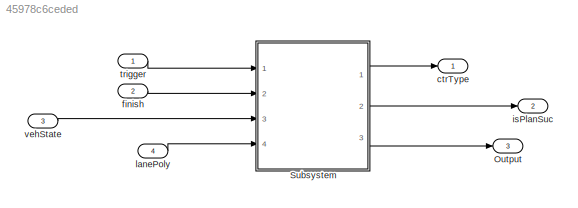
MODEL slx_45978c6ceded
KIND model
CONFIG AbsTol = auto
CONFIG EnableMultiTasking = off
CONFIG FixedStep = 0.001
CONFIG MaxStep = auto
CONFIG MinStep = auto
CONFIG RelTol = 1e-3
CONFIG SampleTimeConstraint = Unconstrained
CONFIG Solver = FixedStepAuto
CONFIG SolverName = FixedStepAuto
CONFIG StartTime = 0.0
CONFIG StopTime = inf
BLOCK [Outport] Output
  IconDisplay = Port number
  OutDataTypeStr = Bus: PlanningOutput
  Port = 3
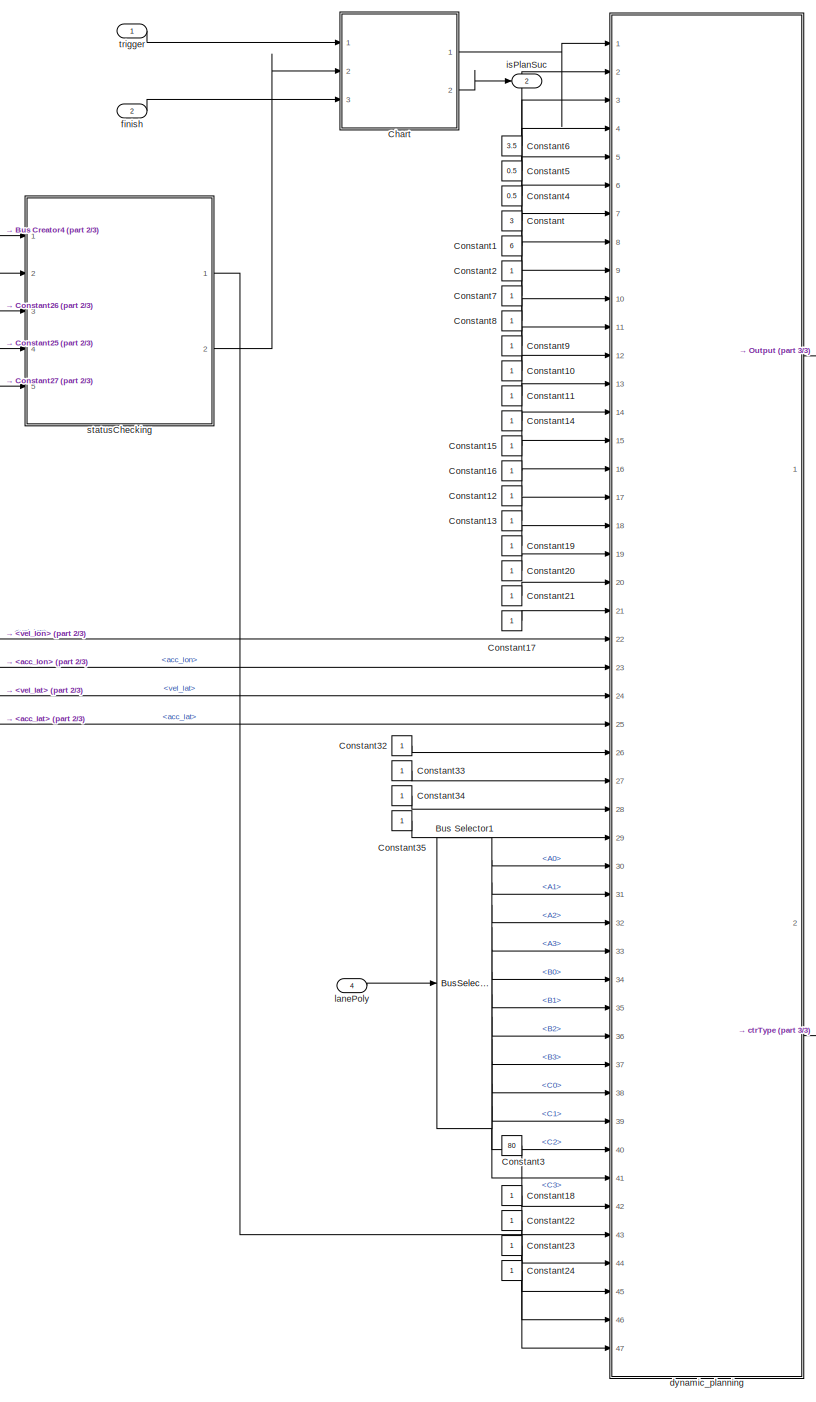
[diagram: Subsystem - part 1/3, center side, full height]
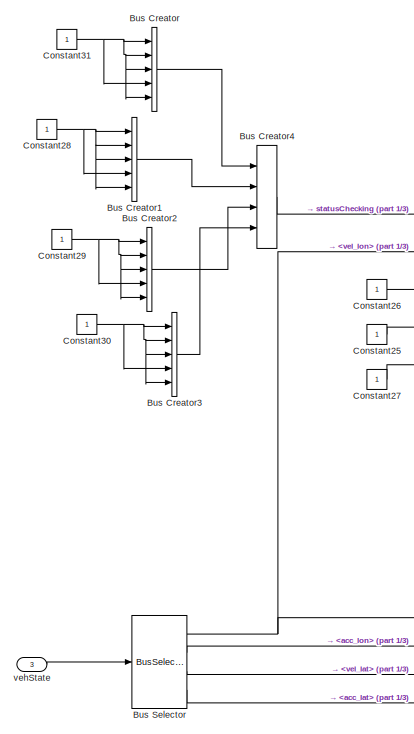
[diagram: Subsystem - part 2/3, top left region]
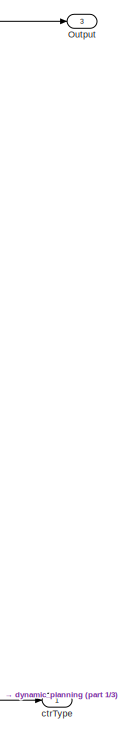
[diagram: Subsystem - part 3/3, middle right region]
BLOCK [SubSystem] Subsystem
  Ports = [4, 3]
  RequestExecContextInheritance = off
BLOCK [BusCreator] Subsystem/Bus Creator
  DisplayOption = bar
  InheritFromInputs = on
  Inputs = 5
  OutDataTypeStr = Bus: ObjInfo
  Ports = [5, 1]
BLOCK [BusCreator] Subsystem/Bus Creator1
  DisplayOption = bar
  InheritFromInputs = on
  Inputs = 5
  OutDataTypeStr = Bus: ObjInfo
  Ports = [5, 1]
BLOCK [BusCreator] Subsystem/Bus Creator2
  DisplayOption = bar
  InheritFromInputs = on
  Inputs = 5
  OutDataTypeStr = Bus: ObjInfo
  Ports = [5, 1]
BLOCK [BusCreator] Subsystem/Bus Creator3
  DisplayOption = bar
  InheritFromInputs = on
  Inputs = 5
  OutDataTypeStr = Bus: ObjInfo
  Ports = [5, 1]
BLOCK [BusCreator] Subsystem/Bus Creator4
  DisplayOption = bar
  InheritFromInputs = on
  Inputs = 4
  OutDataTypeStr = Bus: SelectedObject
  Ports = [4, 1]
BLOCK [BusSelector] Subsystem/Bus Selector
  OutputAsBus = off
  OutputSignals = vel_lon,acc_lon,vel_lat,acc_lat
  Ports = [1, 4]
BLOCK [BusSelector] Subsystem/Bus Selector1
  OutputAsBus = off
  OutputSignals = A0,A1,A2,A3,B0,B1,B2,B3,C0,C1,C2,C3
  Ports = [1, 12]
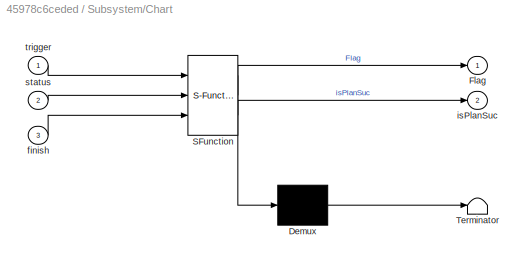
BLOCK [SubSystem] Subsystem/Chart
  ErrorFcn = Stateflow.Translate.translate
  PermitHierarchicalResolution = ExplicitOnly
  Ports = [3, 2]
  RequestExecContextInheritance = off
  SFBlockType = Chart
  TreatAsAtomicUnit = on
BLOCK [Demux] Subsystem/Chart/ Demux 
  Outputs = 1
  Ports = [1, 1]
BLOCK [S-Function] Subsystem/Chart/ SFunction 
  EnableBusSupport = on
  FunctionName = sf_sfun
  PortCounts = [3 3]
  Ports = [3, 3]
  SFcnIsStateOwnerBlock = off
  SFunctionDeploymentMode = off
  Tag = Stateflow S-Function module_dynamic_merge_2018b 3
BLOCK [Terminator] Subsystem/Chart/ Terminator 
BLOCK [Outport] Subsystem/Chart/Flag
  IconDisplay = Port number
BLOCK [Inport] Subsystem/Chart/finish
  IconDisplay = Port number
  Port = 3
BLOCK [Outport] Subsystem/Chart/isPlanSuc
  IconDisplay = Port number
  Port = 2
BLOCK [Inport] Subsystem/Chart/status
  IconDisplay = Port number
  Port = 2
BLOCK [Inport] Subsystem/Chart/trigger
  IconDisplay = Port number
BLOCK [Constant] Subsystem/Constant
  Value = 3
BLOCK [Constant] Subsystem/Constant1
  Value = 6
BLOCK [Constant] Subsystem/Constant10
BLOCK [Constant] Subsystem/Constant11
BLOCK [Constant] Subsystem/Constant12
BLOCK [Constant] Subsystem/Constant13
BLOCK [Constant] Subsystem/Constant14
BLOCK [Constant] Subsystem/Constant15
BLOCK [Constant] Subsystem/Constant16
BLOCK [Constant] Subsystem/Constant17
BLOCK [Constant] Subsystem/Constant18
BLOCK [Constant] Subsystem/Constant19
BLOCK [Constant] Subsystem/Constant2
BLOCK [Constant] Subsystem/Constant20
BLOCK [Constant] Subsystem/Constant21
BLOCK [Constant] Subsystem/Constant22
BLOCK [Constant] Subsystem/Constant23
BLOCK [Constant] Subsystem/Constant24
BLOCK [Constant] Subsystem/Constant25
BLOCK [Constant] Subsystem/Constant26
BLOCK [Constant] Subsystem/Constant27
BLOCK [Constant] Subsystem/Constant28
BLOCK [Constant] Subsystem/Constant29
BLOCK [Constant] Subsystem/Constant3
  OutDataTypeStr = double
  Value = 80
BLOCK [Constant] Subsystem/Constant30
BLOCK [Constant] Subsystem/Constant31
BLOCK [Constant] Subsystem/Constant32
BLOCK [Constant] Subsystem/Constant33
BLOCK [Constant] Subsystem/Constant34
BLOCK [Constant] Subsystem/Constant35
BLOCK [Constant] Subsystem/Constant4
  Value = 0.5
BLOCK [Constant] Subsystem/Constant5
  Value = 0.5
BLOCK [Constant] Subsystem/Constant6
  Value = 3.5
BLOCK [Constant] Subsystem/Constant7
BLOCK [Constant] Subsystem/Constant8
BLOCK [Constant] Subsystem/Constant9
BLOCK [Outport] Subsystem/Output
  IconDisplay = Port number
  OutDataTypeStr = Bus: PlanningOutput
  Port = 3
BLOCK [Outport] Subsystem/ctrType
  IconDisplay = Port number
  OutDataTypeStr = double
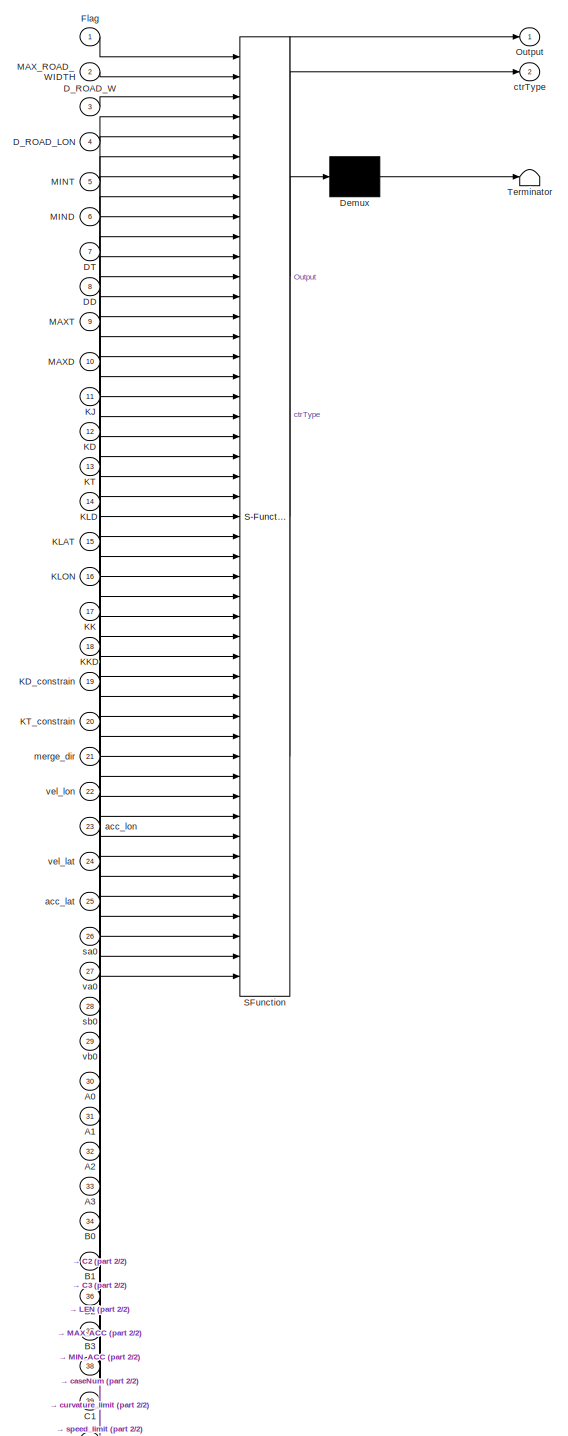
[diagram: Subsystem/dynamic_planning - part 1/2, most of the canvas]
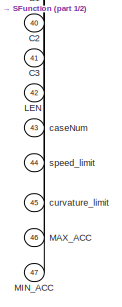
[diagram: Subsystem/dynamic_planning - part 2/2, bottom left region]
BLOCK [SubSystem] Subsystem/dynamic_planning
  ErrorFcn = Stateflow.Translate.translate
  PermitHierarchicalResolution = ExplicitOnly
  Ports = [47, 2]
  RequestExecContextInheritance = off
  SFBlockType = MATLAB Function
  TreatAsAtomicUnit = on
BLOCK [Demux] Subsystem/dynamic_planning/ Demux 
  Outputs = 1
  Ports = [1, 1]
BLOCK [S-Function] Subsystem/dynamic_planning/ SFunction 
  EnableBusSupport = on
  FunctionName = sf_sfun
  PortCounts = [47 3]
  Ports = [47, 3]
  SFcnIsStateOwnerBlock = off
  SFunctionDeploymentMode = off
  Tag = Stateflow S-Function module_dynamic_merge_2018b 1
BLOCK [Terminator] Subsystem/dynamic_planning/ Terminator 
BLOCK [Inport] Subsystem/dynamic_planning/A0
  IconDisplay = Port number
  Port = 30
BLOCK [Inport] Subsystem/dynamic_planning/A1
  IconDisplay = Port number
  Port = 31
BLOCK [Inport] Subsystem/dynamic_planning/A2
  IconDisplay = Port number
  Port = 32
BLOCK [Inport] Subsystem/dynamic_planning/A3
  IconDisplay = Port number
  Port = 33
BLOCK [Inport] Subsystem/dynamic_planning/B0
  IconDisplay = Port number
  Port = 34
BLOCK [Inport] Subsystem/dynamic_planning/B1
  IconDisplay = Port number
  Port = 35
BLOCK [Inport] Subsystem/dynamic_planning/B2
  IconDisplay = Port number
  Port = 36
BLOCK [Inport] Subsystem/dynamic_planning/B3
  IconDisplay = Port number
  Port = 37
BLOCK [Inport] Subsystem/dynamic_planning/C0
  IconDisplay = Port number
  Port = 38
BLOCK [Inport] Subsystem/dynamic_planning/C1
  IconDisplay = Port number
  Port = 39
BLOCK [Inport] Subsystem/dynamic_planning/C2
  IconDisplay = Port number
  Port = 40
BLOCK [Inport] Subsystem/dynamic_planning/C3
  IconDisplay = Port number
  Port = 41
BLOCK [Inport] Subsystem/dynamic_planning/DD
  IconDisplay = Port number
  Port = 8
BLOCK [Inport] Subsystem/dynamic_planning/DT
  IconDisplay = Port number
  Port = 7
BLOCK [Inport] Subsystem/dynamic_planning/D_ROAD_LON
  IconDisplay = Port number
  Port = 4
BLOCK [Inport] Subsystem/dynamic_planning/D_ROAD_W
  IconDisplay = Port number
  Port = 3
BLOCK [Inport] Subsystem/dynamic_planning/Flag
  IconDisplay = Port number
BLOCK [Inport] Subsystem/dynamic_planning/KD
  IconDisplay = Port number
  Port = 12
BLOCK [Inport] Subsystem/dynamic_planning/KD_constrain
  IconDisplay = Port number
  Port = 19
BLOCK [Inport] Subsystem/dynamic_planning/KJ
  IconDisplay = Port number
  Port = 11
BLOCK [Inport] Subsystem/dynamic_planning/KK
  IconDisplay = Port number
  Port = 17
BLOCK [Inport] Subsystem/dynamic_planning/KKD
  IconDisplay = Port number
  Port = 18
BLOCK [Inport] Subsystem/dynamic_planning/KLAT
  IconDisplay = Port number
  Port = 15
BLOCK [Inport] Subsystem/dynamic_planning/KLD
  IconDisplay = Port number
  Port = 14
BLOCK [Inport] Subsystem/dynamic_planning/KLON
  IconDisplay = Port number
  Port = 16
BLOCK [Inport] Subsystem/dynamic_planning/KT
  IconDisplay = Port number
  Port = 13
BLOCK [Inport] Subsystem/dynamic_planning/KT_constrain
  IconDisplay = Port number
  Port = 20
BLOCK [Inport] Subsystem/dynamic_planning/LEN
  IconDisplay = Port number
  Port = 42
BLOCK [Inport] Subsystem/dynamic_planning/MAXD
  IconDisplay = Port number
  Port = 10
BLOCK [Inport] Subsystem/dynamic_planning/MAXT
  IconDisplay = Port number
  Port = 9
BLOCK [Inport] Subsystem/dynamic_planning/MAX_ACC
  IconDisplay = Port number
  Port = 46
BLOCK [Inport] Subsystem/dynamic_planning/MAX_ROAD_WIDTH
  IconDisplay = Port number
  Port = 2
BLOCK [Inport] Subsystem/dynamic_planning/MIND
  IconDisplay = Port number
  Port = 6
BLOCK [Inport] Subsystem/dynamic_planning/MINT
  IconDisplay = Port number
  Port = 5
BLOCK [Inport] Subsystem/dynamic_planning/MIN_ACC
  IconDisplay = Port number
  Port = 47
BLOCK [Outport] Subsystem/dynamic_planning/Output
  IconDisplay = Port number
BLOCK [Inport] Subsystem/dynamic_planning/acc_lat
  IconDisplay = Port number
  Port = 25
BLOCK [Inport] Subsystem/dynamic_planning/acc_lon
  IconDisplay = Port number
  Port = 23
BLOCK [Inport] Subsystem/dynamic_planning/caseNum
  IconDisplay = Port number
  Port = 43
BLOCK [Outport] Subsystem/dynamic_planning/ctrType
  IconDisplay = Port number
  Port = 2
BLOCK [Inport] Subsystem/dynamic_planning/curvature_limit
  IconDisplay = Port number
  Port = 45
BLOCK [Inport] Subsystem/dynamic_planning/merge_dir
  IconDisplay = Port number
  Port = 21
BLOCK [Inport] Subsystem/dynamic_planning/sa0
  IconDisplay = Port number
  Port = 26
BLOCK [Inport] Subsystem/dynamic_planning/sb0
  IconDisplay = Port number
  Port = 28
BLOCK [Inport] Subsystem/dynamic_planning/speed_limit
  IconDisplay = Port number
  Port = 44
BLOCK [Inport] Subsystem/dynamic_planning/va0
  IconDisplay = Port number
  Port = 27
BLOCK [Inport] Subsystem/dynamic_planning/vb0
  IconDisplay = Port number
  Port = 29
BLOCK [Inport] Subsystem/dynamic_planning/vel_lat
  IconDisplay = Port number
  Port = 24
BLOCK [Inport] Subsystem/dynamic_planning/vel_lon
  IconDisplay = Port number
  Port = 22
BLOCK [Inport] Subsystem/finish
  IconDisplay = Port number
  Port = 2
BLOCK [Outport] Subsystem/isPlanSuc
  IconDisplay = Port number
  OutDataTypeStr = int8
  Port = 2
BLOCK [Inport] Subsystem/lanePoly 
  IconDisplay = Port number
  OutDataTypeStr = Bus: lanePoly
  Port = 4
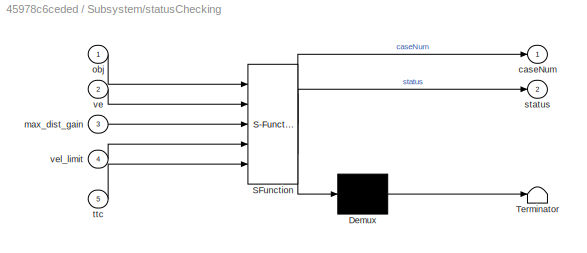
BLOCK [SubSystem] Subsystem/statusChecking
  ErrorFcn = Stateflow.Translate.translate
  PermitHierarchicalResolution = ExplicitOnly
  Ports = [5, 2]
  RequestExecContextInheritance = off
  SFBlockType = MATLAB Function
  TreatAsAtomicUnit = on
BLOCK [Demux] Subsystem/statusChecking/ Demux 
  Outputs = 1
  Ports = [1, 1]
BLOCK [S-Function] Subsystem/statusChecking/ SFunction 
  EnableBusSupport = on
  FunctionName = sf_sfun
  PortCounts = [5 3]
  Ports = [5, 3]
  SFcnIsStateOwnerBlock = off
  SFunctionDeploymentMode = off
  Tag = Stateflow S-Function module_dynamic_merge_2018b 2
BLOCK [Terminator] Subsystem/statusChecking/ Terminator 
BLOCK [Outport] Subsystem/statusChecking/caseNum
  IconDisplay = Port number
BLOCK [Inport] Subsystem/statusChecking/max_dist_gain
  IconDisplay = Port number
  Port = 3
BLOCK [Inport] Subsystem/statusChecking/obj
  IconDisplay = Port number
BLOCK [Outport] Subsystem/statusChecking/status
  IconDisplay = Port number
  Port = 2
BLOCK [Inport] Subsystem/statusChecking/ttc
  IconDisplay = Port number
  Port = 5
BLOCK [Inport] Subsystem/statusChecking/ve
  IconDisplay = Port number
  Port = 2
BLOCK [Inport] Subsystem/statusChecking/vel_limit
  IconDisplay = Port number
  Port = 4
BLOCK [Inport] Subsystem/trigger
  IconDisplay = Port number
BLOCK [Inport] Subsystem/vehState
  IconDisplay = Port number
  OutDataTypeStr = Bus: vehStates
  Port = 3
BLOCK [Outport] ctrType
  IconDisplay = Port number
  OutDataTypeStr = double
BLOCK [Inport] finish
  IconDisplay = Port number
  Port = 2
BLOCK [Outport] isPlanSuc
  IconDisplay = Port number
  OutDataTypeStr = int8
  Port = 2
BLOCK [Inport] lanePoly 
  IconDisplay = Port number
  OutDataTypeStr = Bus: lanePoly
  Port = 4
BLOCK [Inport] trigger
  IconDisplay = Port number
BLOCK [Inport] vehState
  IconDisplay = Port number
  OutDataTypeStr = Bus: vehStates
  Port = 3
LINE Subsystem/Bus Creator1:1 -> Subsystem/Bus Creator4:2
LINE Subsystem/Bus Creator2:1 -> Subsystem/Bus Creator4:3
LINE Subsystem/Bus Creator3:1 -> Subsystem/Bus Creator4:4
LINE Subsystem/Bus Creator4:1 -> Subsystem/statusChecking:1
LINE Subsystem/Bus Creator:1 -> Subsystem/Bus Creator4:1
LINE Subsystem/Bus Selector1:1 -> Subsystem/dynamic_planning:30
LINE Subsystem/Bus Selector1:10 -> Subsystem/dynamic_planning:39
LINE Subsystem/Bus Selector1:11 -> Subsystem/dynamic_planning:40
LINE Subsystem/Bus Selector1:12 -> Subsystem/dynamic_planning:41
LINE Subsystem/Bus Selector1:2 -> Subsystem/dynamic_planning:31
LINE Subsystem/Bus Selector1:3 -> Subsystem/dynamic_planning:32
LINE Subsystem/Bus Selector1:4 -> Subsystem/dynamic_planning:33
LINE Subsystem/Bus Selector1:5 -> Subsystem/dynamic_planning:34
LINE Subsystem/Bus Selector1:6 -> Subsystem/dynamic_planning:35
LINE Subsystem/Bus Selector1:7 -> Subsystem/dynamic_planning:36
LINE Subsystem/Bus Selector1:8 -> Subsystem/dynamic_planning:37
LINE Subsystem/Bus Selector1:9 -> Subsystem/dynamic_planning:38
NET Subsystem/Bus Selector:1 -> Subsystem/dynamic_planning:22, Subsystem/statusChecking:2
LINE Subsystem/Bus Selector:2 -> Subsystem/dynamic_planning:23
LINE Subsystem/Bus Selector:3 -> Subsystem/dynamic_planning:24
LINE Subsystem/Bus Selector:4 -> Subsystem/dynamic_planning:25
LINE Subsystem/Chart:1 -> Subsystem/dynamic_planning:1
LINE Subsystem/Chart:2 -> Subsystem/isPlanSuc:1
LINE Subsystem/Constant10:1 -> Subsystem/dynamic_planning:11
LINE Subsystem/Constant11:1 -> Subsystem/dynamic_planning:12
LINE Subsystem/Constant12:1 -> Subsystem/dynamic_planning:16
LINE Subsystem/Constant13:1 -> Subsystem/dynamic_planning:17
LINE Subsystem/Constant14:1 -> Subsystem/dynamic_planning:13
LINE Subsystem/Constant15:1 -> Subsystem/dynamic_planning:14
LINE Subsystem/Constant16:1 -> Subsystem/dynamic_planning:15
LINE Subsystem/Constant17:1 -> Subsystem/dynamic_planning:21
LINE Subsystem/Constant18:1 -> Subsystem/dynamic_planning:44
LINE Subsystem/Constant19:1 -> Subsystem/dynamic_planning:18
LINE Subsystem/Constant1:1 -> Subsystem/dynamic_planning:6
LINE Subsystem/Constant20:1 -> Subsystem/dynamic_planning:19
LINE Subsystem/Constant21:1 -> Subsystem/dynamic_planning:20
LINE Subsystem/Constant22:1 -> Subsystem/dynamic_planning:45
LINE Subsystem/Constant23:1 -> Subsystem/dynamic_planning:46
LINE Subsystem/Constant24:1 -> Subsystem/dynamic_planning:47
LINE Subsystem/Constant25:1 -> Subsystem/statusChecking:4
LINE Subsystem/Constant26:1 -> Subsystem/statusChecking:3
LINE Subsystem/Constant27:1 -> Subsystem/statusChecking:5
NET Subsystem/Constant28:1 -> Subsystem/Bus Creator1:1, Subsystem/Bus Creator1:2, Subsystem/Bus Creator1:3, Subsystem/Bus Creator1:4, Subsystem/Bus Creator1:5
NET Subsystem/Constant29:1 -> Subsystem/Bus Creator2:1, Subsystem/Bus Creator2:2, Subsystem/Bus Creator2:3, Subsystem/Bus Creator2:4, Subsystem/Bus Creator2:5
LINE Subsystem/Constant2:1 -> Subsystem/dynamic_planning:7
NET Subsystem/Constant30:1 -> Subsystem/Bus Creator3:1, Subsystem/Bus Creator3:2, Subsystem/Bus Creator3:3, Subsystem/Bus Creator3:4, Subsystem/Bus Creator3:5
NET Subsystem/Constant31:1 -> Subsystem/Bus Creator:1, Subsystem/Bus Creator:2, Subsystem/Bus Creator:3, Subsystem/Bus Creator:4, Subsystem/Bus Creator:5
LINE Subsystem/Constant32:1 -> Subsystem/dynamic_planning:26
LINE Subsystem/Constant33:1 -> Subsystem/dynamic_planning:27
LINE Subsystem/Constant34:1 -> Subsystem/dynamic_planning:28
LINE Subsystem/Constant35:1 -> Subsystem/dynamic_planning:29
LINE Subsystem/Constant3:1 -> Subsystem/dynamic_planning:42
LINE Subsystem/Constant4:1 -> Subsystem/dynamic_planning:4
LINE Subsystem/Constant5:1 -> Subsystem/dynamic_planning:3
LINE Subsystem/Constant6:1 -> Subsystem/dynamic_planning:2
LINE Subsystem/Constant7:1 -> Subsystem/dynamic_planning:8
LINE Subsystem/Constant8:1 -> Subsystem/dynamic_planning:9
LINE Subsystem/Constant9:1 -> Subsystem/dynamic_planning:10
LINE Subsystem/Constant:1 -> Subsystem/dynamic_planning:5
LINE Subsystem/dynamic_planning:1 -> Subsystem/Output:1
LINE Subsystem/dynamic_planning:2 -> Subsystem/ctrType:1
LINE Subsystem/finish:1 -> Subsystem/Chart:3
LINE Subsystem/lanePoly :1 -> Subsystem/Bus Selector1:1
LINE Subsystem/statusChecking:1 -> Subsystem/dynamic_planning:43
LINE Subsystem/statusChecking:2 -> Subsystem/Chart:2
LINE Subsystem/trigger:1 -> Subsystem/Chart:1
LINE Subsystem/vehState:1 -> Subsystem/Bus Selector:1
LINE Subsystem:1 -> ctrType:1
LINE Subsystem:2 -> isPlanSuc:1
LINE Subsystem:3 -> Output:1
LINE finish:1 -> Subsystem:2
LINE lanePoly :1 -> Subsystem:4
LINE trigger:1 -> Subsystem:1
LINE vehState:1 -> Subsystem:3
note: NET lines group one-source signal fan-out (src -> all destinations, sorted); 1:1 wires keep LINE
CHART Subsystem/dynamic_planning states=1 transitions=1
  STATE_LABEL 'eML_blk_kernel()'
  STATE_LABEL 'SCRIPT:\n%% /****************************************************************************\n% *  Automatic Lane Changing                                                   *\n% *  <copyright redacted>\n% *                                                                            *\n% *  This file is part of Lane Changing functionals.                           *\n% *...<+3576ch>'
CHART Subsystem/statusChecking states=1 transitions=1
  STATE_LABEL 'eML_blk_kernel()'
  STATE_LABEL 'SCRIPT:\nfunction [caseNum, status] = statusChecking(obj,ve,max_dist_gain,vel_limit,ttc)\n    \n    id_a = obj.A.ID;\n    pa = obj.A.dist ;\n    va = obj.A.v;\n\n    id_b = obj.B.ID;\n    pb = obj.B.dist ;\n    vb = obj.B.v;\n\n    id_c = obj.C.ID ;\n    pc = obj.C.dist;\n    vc = obj.C.v;\n\n    id_d = obj.D.ID; \n    pd = obj.D.dist;\n    vd = obj.D.v;\n\n% in this part, we divide the cases into 4 based on vehicle...<+1814ch>'
CHART Subsystem/Chart states=4 transitions=8
  STATE_LABEL 'initial\nentry:\nFlag = 0;\nisPlanSuc = 0;'
  STATE_LABEL 'pre\nentry:\nFlag = 1;\nisPlanSuc = 1;'
  STATE_LABEL 'active\nentry:\nFlag = 2;\nisPlanSuc = 2;'
  STATE_LABEL 'yield\nentry:\nFlag = 3;\nisPlanSuc = 3;'
